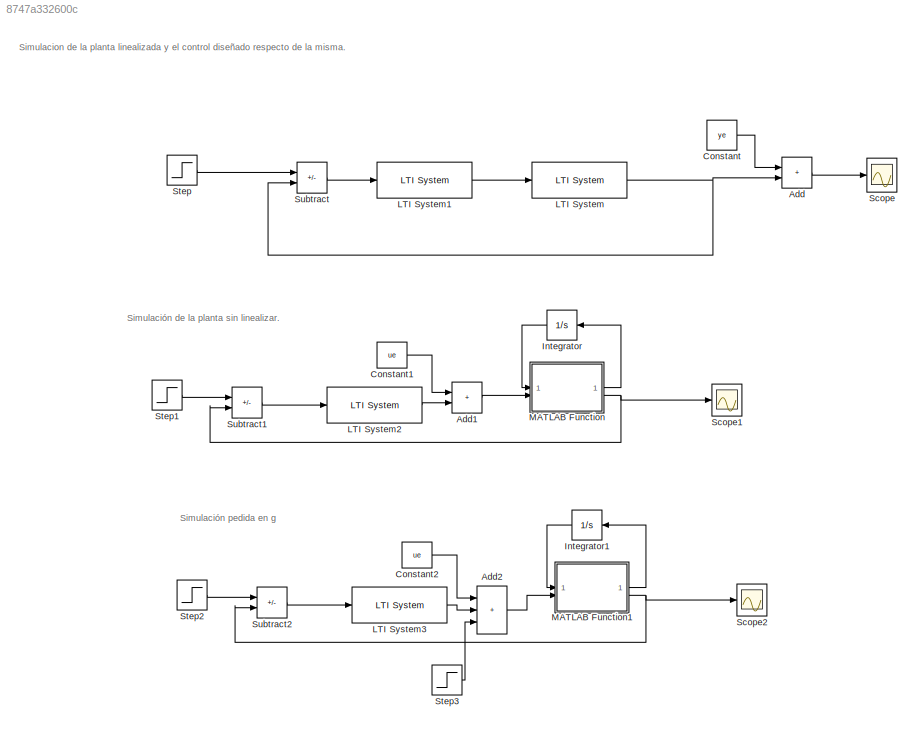
MODEL slx_8747a332600c
KIND model
CONFIG AbsTol = auto
CONFIG EnableMultiTasking = off
CONFIG FixedStep = auto
CONFIG MaxStep = auto
CONFIG MinStep = auto
CONFIG RelTol = 1e-3
CONFIG SampleTimeConstraint = Unconstrained
CONFIG SolverName = VariableStepAuto
CONFIG StartTime = 0.0
CONFIG StopTime = 10.0
BLOCK [Sum] Add
  IconShape = rectangular
BLOCK [Sum] Add1
  IconShape = rectangular
BLOCK [Sum] Add2
  IconShape = rectangular
  Inputs = +++
BLOCK [Constant] Constant
  Value = ye
BLOCK [Constant] Constant1
  Value = ue
BLOCK [Constant] Constant2
  Value = ue
BLOCK [Integrator] Integrator
  InitialCondition = [x1e, x2e, x3e]
  NameLocation = top
BLOCK [Integrator] Integrator1
  InitialCondition = [x1e, x2e, x3e]
  NameLocation = top
BLOCK [Reference] LTI System  REF=cstblocks/LTI System
  SourceBlock = cstblocks/LTI System
  SourceType = LTI Block
BLOCK [Reference] LTI System1  REF=cstblocks/LTI System
  SourceBlock = cstblocks/LTI System
  SourceType = LTI Block
BLOCK [Reference] LTI System2  REF=cstblocks/LTI System
  SourceBlock = cstblocks/LTI System
  SourceType = LTI Block
BLOCK [Reference] LTI System3  REF=cstblocks/LTI System
  SourceBlock = cstblocks/LTI System
  SourceType = LTI Block
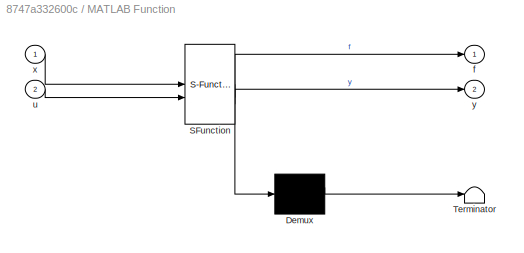
BLOCK [SubSystem] MATLAB Function
  ErrorFcn = Stateflow.Translate.translate
  PermitHierarchicalResolution = ExplicitOnly
  SFBlockType = MATLAB Function
  TreatAsAtomicUnit = on
BLOCK [Demux] MATLAB Function/ Demux 
  Outputs = 1
BLOCK [S-Function] MATLAB Function/ SFunction 
  EnableBusSupport = on
  FunctionName = sf_sfun
  PortCounts = [2 3]
  SFcnIsStateOwnerBlock = off
  SFunctionDeploymentMode = off
  Tag = Stateflow S-Function 2
BLOCK [Terminator] MATLAB Function/ Terminator 
BLOCK [Outport] MATLAB Function/f
BLOCK [Inport] MATLAB Function/u
  Port = 2
BLOCK [Inport] MATLAB Function/x
BLOCK [Outport] MATLAB Function/y
  Port = 2
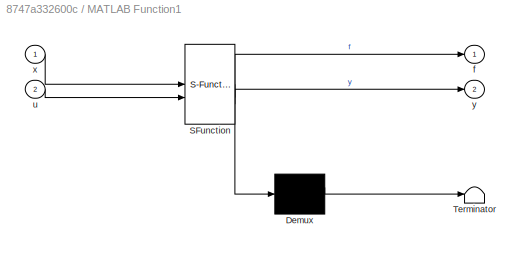
BLOCK [SubSystem] MATLAB Function1
  ErrorFcn = Stateflow.Translate.translate
  PermitHierarchicalResolution = ExplicitOnly
  SFBlockType = MATLAB Function
  TreatAsAtomicUnit = on
BLOCK [Demux] MATLAB Function1/ Demux 
  Outputs = 1
BLOCK [S-Function] MATLAB Function1/ SFunction 
  EnableBusSupport = on
  FunctionName = sf_sfun
  PortCounts = [2 3]
  SFcnIsStateOwnerBlock = off
  SFunctionDeploymentMode = off
  Tag = Stateflow S-Function 1
BLOCK [Terminator] MATLAB Function1/ Terminator 
BLOCK [Outport] MATLAB Function1/f
BLOCK [Inport] MATLAB Function1/u
  Port = 2
BLOCK [Inport] MATLAB Function1/x
BLOCK [Outport] MATLAB Function1/y
  Port = 2
BLOCK [Scope] Scope
  Floating = off
  NumInputPorts = 1
  ScopeSpecificationString = Simulink.scopes.TimeScopeBlockCfg('CurrentConfiguration', extmgr.ConfigurationSet(extmgr.Configuration('Core','General UI',true),extmgr.Configuration('Core','Source UI',true),extmgr.Configuration('Sources','WiredSimulink',true),extmgr.Configuration('Visuals','Time Domain',true,'SerializedDisplays',{struct('MinYLimReal','-0.13418','MaxYLimReal','1.20144','YLabelReal','','MinYLimMag','0.00000','MaxY...<+1377ch>
BLOCK [Scope] Scope1
  Floating = off
  NumInputPorts = 1
  ScopeSpecificationString = Simulink.scopes.TimeScopeBlockCfg('CurrentConfiguration', extmgr.ConfigurationSet(extmgr.Configuration('Core','General UI',true),extmgr.Configuration('Core','Source UI',true),extmgr.Configuration('Sources','WiredSimulink',true,'DataLoggingVariableName','ScopeData1'),extmgr.Configuration('Visuals','Time Domain',true,'SerializedDisplays',{struct('MinYLimReal','0.99316','MaxYLimReal','1.06129','YLabe...<+1428ch>
BLOCK [Scope] Scope2
  Floating = off
  NumInputPorts = 1
  ScopeSpecificationString = Simulink.scopes.TimeScopeBlockCfg('CurrentConfiguration', extmgr.ConfigurationSet(extmgr.Configuration('Core','General UI',true),extmgr.Configuration('Core','Source UI',true),extmgr.Configuration('Sources','WiredSimulink',true,'DataLoggingVariableName','ScopeData2'),extmgr.Configuration('Visuals','Time Domain',true,'SerializedDisplays',{struct('MinYLimReal','1.48405','MaxYLimReal','1.50342','YLabe...<+1429ch>
BLOCK [Step] Step
  After = 0.05
  SampleTime = 0
  Time = 2
BLOCK [Step] Step1
  After = ye+(ye*0.05)
  Before = ye
  SampleTime = 0
  Time = 2
BLOCK [Step] Step2
  After = ye+(ye*0.5)
  Before = ye
  SampleTime = 0
  Time = 2
BLOCK [Step] Step3
  After = ue*0.5
  SampleTime = 0
  Time = 6
BLOCK [Sum] Subtract
  IconShape = rectangular
  Inputs = +-
BLOCK [Sum] Subtract1
  IconShape = rectangular
  Inputs = +-
BLOCK [Sum] Subtract2
  IconShape = rectangular
  Inputs = +-
ANNOTATION (root): Simulacion de la planta linealizada y el control diseñado respecto de la misma.
ANNOTATION (root): Simulación de la planta sin linealizar.
ANNOTATION (root): Simulación pedida en g
LINE Add1:1 -> MATLAB Function:2
LINE Add2:1 -> MATLAB Function1:2
LINE Add:1 -> Scope:1
LINE Constant1:1 -> Add1:1
LINE Constant2:1 -> Add2:1
LINE Constant:1 -> Add:1
LINE Integrator1:1 -> MATLAB Function1:1
LINE Integrator:1 -> MATLAB Function:1
LINE LTI System1:1 -> LTI System:1
LINE LTI System2:1 -> Add1:2
LINE LTI System3:1 -> Add2:2
NET LTI System:1 -> Add:2, Subtract:2
LINE MATLAB Function1:1 -> Integrator1:1
NET MATLAB Function1:2 -> Scope2:1, Subtract2:2
LINE MATLAB Function:1 -> Integrator:1
NET MATLAB Function:2 -> Scope1:1, Subtract1:2
LINE Step1:1 -> Subtract1:1
LINE Step2:1 -> Subtract2:1
LINE Step3:1 -> Add2:3
LINE Step:1 -> Subtract:1
LINE Subtract1:1 -> LTI System2:1
LINE Subtract2:1 -> LTI System3:1
LINE Subtract:1 -> LTI System1:1
note: NET lines group one-source signal fan-out (src -> all destinations, sorted); 1:1 wires keep LINE
CHART MATLAB Function states=1 transitions=1
  STATE_LABEL 'eML_blk_kernel()'
  STATE_LABEL 'SCRIPT:\nfunction [f,y] = fcn(x,u)\n%Parámetros del problema\nR=4;\nL=1e-2;\nm=0.1;\ng=10;\n\n% Definir funciones de derivadas (f)\nf1=u/L-(R/L)*x(1);\nf2=x(3);\nf3=g-(x(1))/(x(2)*m);\n\nf = [f1; f2; f3];\n\n% Definir la salida\xa0y\ny=x(2);\n'
CHART MATLAB Function1 states=1 transitions=1
  STATE_LABEL 'eML_blk_kernel()'
  STATE_LABEL 'SCRIPT:\nfunction [f,y] = fcn(x,u)\n%Parámetros del problema\nR=4;\nL=1e-2;\nm=0.1;\ng=10;\n\n% Definir funciones de derivadas (f)\nf1=u/L-(R/L)*x(1);\nf2=x(3);\nf3=g-(x(1))/(x(2)*m);\n\nf = [f1; f2; f3];\n\n% Definir la salida\xa0y\ny=x(2);\n'
CHART  states=0 transitions=0
CHART  states=0 transitions=0
